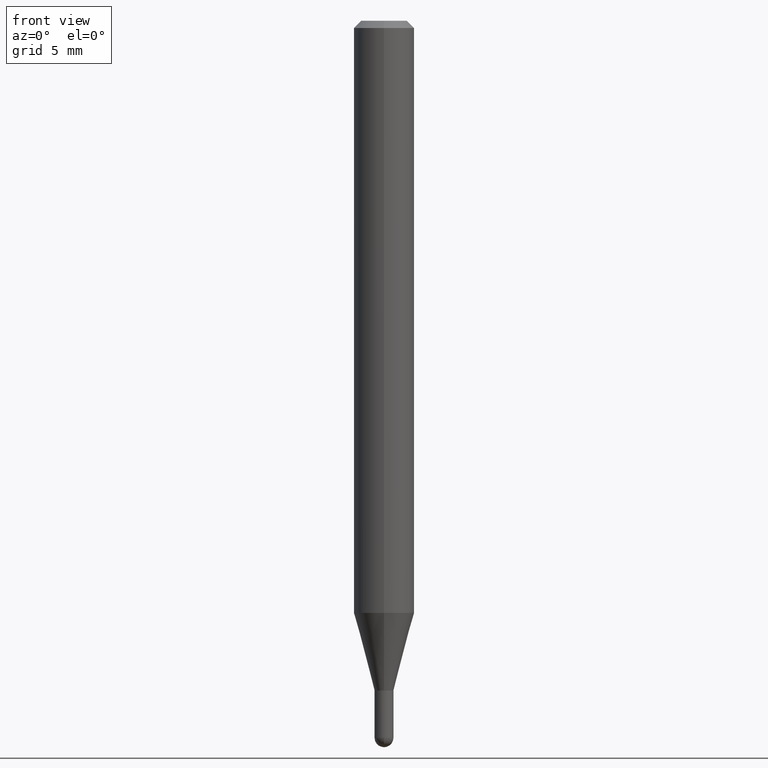
[diagram: clean part render]
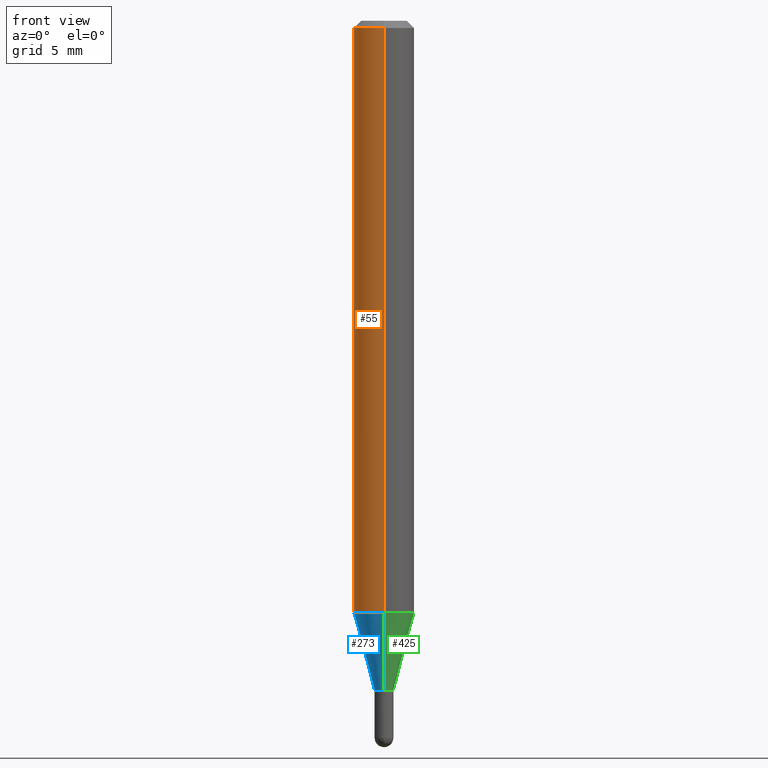
[diagram: same view with three faces highlighted in distinct colors, each labeled with its STEP entity id]
A machine part, front view with three faces highlighted in distinct colors.
Their STEP definitions:

[orange] entity #55 — the highlighted cylindrical surface (edge-blend (fillet) strip) has radius 1.5875 mm, axis along (-0, 0, 1).
#2 = ORIENTED_EDGE ( 'NONE', *, *, #444, .T. ) ;
#10 = VECTOR ( 'NONE', #50, 39.37007874015748143 ) ;
#11 = CIRCLE ( 'NONE', #88, 0.06250000000000000000 ) ;
#50 = DIRECTION ( 'NONE',  ( -2.445465756563151398E-29, 3.491485706075402250E-15, 1.000000000000000000 ) ) ;
#55 = ADVANCED_FACE ( 'NONE', ( #285 ), #247, .T. ) ;
#67 = CARTESIAN_POINT ( 'NONE',  ( 4.440892098500925929E-16, 0.06249999999999995143, -0.01500000000000028394 ) ) ;
#74 = LINE ( 'NONE', #506, #421 ) ;
#84 = EDGE_CURVE ( 'NONE', #282, #317, #249, .T. ) ;
#85 = DIRECTION ( 'NONE',  ( -6.982962677686265922E-15, -1.000000000000000000, 3.491485706075402250E-15 ) ) ;
#88 = AXIS2_PLACEMENT_3D ( 'NONE', #230, #189, #277 ) ;
#113 = CARTESIAN_POINT ( 'NONE',  ( -4.364351673553912750E-16, -0.06250000000000005551, -0.01499999999999984852 ) ) ;
#137 = DIRECTION ( 'NONE',  ( -2.445465756563151118E-29, 3.491485706075402250E-15, 1.000000000000000000 ) ) ;
#181 = CARTESIAN_POINT ( 'NONE',  ( -4.364351673553618406E-16, -0.06250000000000428824, -1.222521815274542067 ) ) ;
#186 = VERTEX_POINT ( 'NONE', #67 ) ;
#189 = DIRECTION ( 'NONE',  ( -2.445465756563151118E-29, 3.491485706075402250E-15, 1.000000000000000000 ) ) ;
#218 = AXIS2_PLACEMENT_3D ( 'NONE', #441, #484, #85 ) ;
#230 = CARTESIAN_POINT ( 'NONE',  ( 2.989635235905315771E-29, -4.268417443396418257E-15, -1.222521815274542289 ) ) ;
#247 = CYLINDRICAL_SURFACE ( 'NONE', #218, 0.06250000000000000000 ) ;
#249 = LINE ( 'NONE', #479, #10 ) ;
#254 = EDGE_CURVE ( 'NONE', #186, #317, #345, .T. ) ;
#263 = AXIS2_PLACEMENT_3D ( 'NONE', #415, #137, #500 ) ;
#277 = DIRECTION ( 'NONE',  ( -6.982962677686265922E-15, -1.000000000000000000, 4.370956789862821150E-15 ) ) ;
#282 = VERTEX_POINT ( 'NONE', #181 ) ;
#285 = FACE_OUTER_BOUND ( 'NONE', #384, .T. ) ;
#302 = VERTEX_POINT ( 'NONE', #465 ) ;
#307 = ORIENTED_EDGE ( 'NONE', *, *, #84, .T. ) ;
#314 = ORIENTED_EDGE ( 'NONE', *, *, #439, .F. ) ;
#317 = VERTEX_POINT ( 'NONE', #113 ) ;
#345 = CIRCLE ( 'NONE', #263, 0.06250000000000000000 ) ;
#360 = DIRECTION ( 'NONE',  ( -2.445465756563151398E-29, 3.491485706075402250E-15, 1.000000000000000000 ) ) ;
#384 = EDGE_LOOP ( 'NONE', ( #314, #2, #307, #432 ) ) ;
#415 = CARTESIAN_POINT ( 'NONE',  ( 3.668198634844742967E-31, -5.237228559113126399E-17, -0.01500000000000006710 ) ) ;
#421 = VECTOR ( 'NONE', #360, 39.37007874015748143 ) ;
#432 = ORIENTED_EDGE ( 'NONE', *, *, #254, .F. ) ;
#439 = EDGE_CURVE ( 'NONE', #302, #186, #74, .T. ) ;
#441 = CARTESIAN_POINT ( 'NONE',  ( 0.000000000000000000, 0.000000000000000000, 0.000000000000000000 ) ) ;
#444 = EDGE_CURVE ( 'NONE', #302, #282, #11, .T. ) ;
#465 = CARTESIAN_POINT ( 'NONE',  ( 4.440892098500921985E-16, 0.06249999999999571176, -1.222521815274542734 ) ) ;
#479 = CARTESIAN_POINT ( 'NONE',  ( -4.364351673553916201E-16, -0.06250000000000000000, 2.182178566297126406E-16 ) ) ;
#484 = DIRECTION ( 'NONE',  ( -2.445465756563151118E-29, 3.491485706075402250E-15, 1.000000000000000000 ) ) ;
#500 = DIRECTION ( 'NONE',  ( -6.982962677686265922E-15, -1.000000000000000000, 3.483106191921935554E-15 ) ) ;
#506 = CARTESIAN_POINT ( 'NONE',  ( 4.440892098500625669E-16, 0.06250000000000000000, -2.182178566297126406E-16 ) ) ;

[blue] entity #273 — the highlighted conical surface has half-angle 15 deg.
#11 = CIRCLE ( 'NONE', #88, 0.06250000000000000000 ) ;
#16 = EDGE_CURVE ( 'NONE', #193, #282, #90, .T. ) ;
#27 = CONICAL_SURFACE ( 'NONE', #237, 0.01949999999999964956, 0.2617993877991579010 ) ;
#45 = VECTOR ( 'NONE', #480, 39.37007874015748143 ) ;
#59 = ORIENTED_EDGE ( 'NONE', *, *, #444, .F. ) ;
#63 = DIRECTION ( 'NONE',  ( -2.445465756563151118E-29, 3.491485706075402250E-15, 1.000000000000000000 ) ) ;
#86 = VECTOR ( 'NONE', #203, 39.37007874015748854 ) ;
#88 = AXIS2_PLACEMENT_3D ( 'NONE', #230, #189, #277 ) ;
#90 = LINE ( 'NONE', #326, #86 ) ;
#92 = EDGE_CURVE ( 'NONE', #419, #302, #366, .T. ) ;
#96 = CARTESIAN_POINT ( 'NONE',  ( -1.361677722148459211E-16, -0.01950000000000447556, -1.383000000000000007 ) ) ;
#117 = ORIENTED_EDGE ( 'NONE', *, *, #16, .T. ) ;
#147 = DIRECTION ( 'NONE',  ( -2.445465756563151118E-29, 3.491485706075402250E-15, 1.000000000000000000 ) ) ;
#168 = AXIS2_PLACEMENT_3D ( 'NONE', #462, #147, #452 ) ;
#181 = CARTESIAN_POINT ( 'NONE',  ( -4.364351673553618406E-16, -0.06250000000000428824, -1.222521815274542067 ) ) ;
#189 = DIRECTION ( 'NONE',  ( -2.445465756563151118E-29, 3.491485706075402250E-15, 1.000000000000000000 ) ) ;
#193 = VERTEX_POINT ( 'NONE', #96 ) ;
#199 = EDGE_CURVE ( 'NONE', #419, #193, #403, .T. ) ;
#203 = DIRECTION ( 'NONE',  ( -1.807323732225381810E-15, -0.2588190451025255689, 0.9659258262890669799 ) ) ;
#230 = CARTESIAN_POINT ( 'NONE',  ( 2.989635235905315771E-29, -4.268417443396418257E-15, -1.222521815274542289 ) ) ;
#237 = AXIS2_PLACEMENT_3D ( 'NONE', #261, #63, #381 ) ;
#238 = EDGE_LOOP ( 'NONE', ( #350, #347, #117, #59 ) ) ;
#261 = CARTESIAN_POINT ( 'NONE',  ( 3.382079141326838321E-29, -4.828724731502281500E-15, -1.383000000000000007 ) ) ;
#273 = ADVANCED_FACE ( 'NONE', ( #455 ), #27, .T. ) ;
#277 = DIRECTION ( 'NONE',  ( -6.982962677686265922E-15, -1.000000000000000000, 4.370956789862821150E-15 ) ) ;
#282 = VERTEX_POINT ( 'NONE', #181 ) ;
#302 = VERTEX_POINT ( 'NONE', #465 ) ;
#326 = CARTESIAN_POINT ( 'NONE',  ( -1.361677722148459211E-16, -0.01950000000000447556, -1.383000000000000007 ) ) ;
#347 = ORIENTED_EDGE ( 'NONE', *, *, #199, .T. ) ;
#350 = ORIENTED_EDGE ( 'NONE', *, *, #92, .F. ) ;
#366 = LINE ( 'NONE', #408, #45 ) ;
#381 = DIRECTION ( 'NONE',  ( -6.982962677686265133E-15, -1.000000000000000000, 0.000000000000000000 ) ) ;
#403 = CIRCLE ( 'NONE', #168, 0.01949999999999964956 ) ;
#408 = CARTESIAN_POINT ( 'NONE',  ( 1.385558334732508193E-16, 0.01949999999999482009, -1.383000000000000007 ) ) ;
#419 = VERTEX_POINT ( 'NONE', #510 ) ;
#444 = EDGE_CURVE ( 'NONE', #302, #282, #11, .T. ) ;
#452 = DIRECTION ( 'NONE',  ( -6.982962677686265133E-15, -1.000000000000000000, 0.000000000000000000 ) ) ;
#455 = FACE_OUTER_BOUND ( 'NONE', #238, .T. ) ;
#462 = CARTESIAN_POINT ( 'NONE',  ( 3.382079141326838321E-29, -4.828724731502281500E-15, -1.383000000000000007 ) ) ;
#465 = CARTESIAN_POINT ( 'NONE',  ( 4.440892098500921985E-16, 0.06249999999999571176, -1.222521815274542734 ) ) ;
#480 = DIRECTION ( 'NONE',  ( 1.839019923739652775E-15, 0.2588190451025323413, 0.9659258262890650926 ) ) ;
#510 = CARTESIAN_POINT ( 'NONE',  ( 2.913225216616718047E-16, 0.01949999999999482009, -1.383000000000000007 ) ) ;

[green] entity #425 — the highlighted conical surface has half-angle 15 deg.
#16 = EDGE_CURVE ( 'NONE', #193, #282, #90, .T. ) ;
#45 = VECTOR ( 'NONE', #480, 39.37007874015748143 ) ;
#61 = DIRECTION ( 'NONE',  ( -6.982962677686265922E-15, -1.000000000000000000, 4.370956789862821150E-15 ) ) ;
#78 = FACE_OUTER_BOUND ( 'NONE', #458, .T. ) ;
#86 = VECTOR ( 'NONE', #203, 39.37007874015748854 ) ;
#90 = LINE ( 'NONE', #326, #86 ) ;
#92 = EDGE_CURVE ( 'NONE', #419, #302, #366, .T. ) ;
#96 = CARTESIAN_POINT ( 'NONE',  ( -1.361677722148459211E-16, -0.01950000000000447556, -1.383000000000000007 ) ) ;
#97 = ORIENTED_EDGE ( 'NONE', *, *, #16, .F. ) ;
#144 = DIRECTION ( 'NONE',  ( -6.982962677686265133E-15, -1.000000000000000000, 0.000000000000000000 ) ) ;
#151 = DIRECTION ( 'NONE',  ( -6.982962677686265133E-15, -1.000000000000000000, 0.000000000000000000 ) ) ;
#154 = ORIENTED_EDGE ( 'NONE', *, *, #229, .T. ) ;
#159 = DIRECTION ( 'NONE',  ( -2.445465756563151118E-29, 3.491485706075402250E-15, 1.000000000000000000 ) ) ;
#176 = EDGE_CURVE ( 'NONE', #282, #302, #436, .T. ) ;
#179 = CARTESIAN_POINT ( 'NONE',  ( 2.989635235905315771E-29, -4.268417443396418257E-15, -1.222521815274542289 ) ) ;
#181 = CARTESIAN_POINT ( 'NONE',  ( -4.364351673553618406E-16, -0.06250000000000428824, -1.222521815274542067 ) ) ;
#183 = ORIENTED_EDGE ( 'NONE', *, *, #92, .T. ) ;
#191 = CARTESIAN_POINT ( 'NONE',  ( 3.382079141326838321E-29, -4.828724731502281500E-15, -1.383000000000000007 ) ) ;
#193 = VERTEX_POINT ( 'NONE', #96 ) ;
#196 = ORIENTED_EDGE ( 'NONE', *, *, #176, .F. ) ;
#203 = DIRECTION ( 'NONE',  ( -1.807323732225381810E-15, -0.2588190451025255689, 0.9659258262890669799 ) ) ;
#206 = AXIS2_PLACEMENT_3D ( 'NONE', #488, #253, #144 ) ;
#210 = DIRECTION ( 'NONE',  ( -2.445465756563151118E-29, 3.491485706075402250E-15, 1.000000000000000000 ) ) ;
#229 = EDGE_CURVE ( 'NONE', #193, #419, #459, .T. ) ;
#253 = DIRECTION ( 'NONE',  ( -2.445465756563151118E-29, 3.491485706075402250E-15, 1.000000000000000000 ) ) ;
#282 = VERTEX_POINT ( 'NONE', #181 ) ;
#298 = AXIS2_PLACEMENT_3D ( 'NONE', #179, #210, #61 ) ;
#300 = AXIS2_PLACEMENT_3D ( 'NONE', #191, #159, #151 ) ;
#302 = VERTEX_POINT ( 'NONE', #465 ) ;
#316 = CONICAL_SURFACE ( 'NONE', #300, 0.01949999999999964956, 0.2617993877991579010 ) ;
#326 = CARTESIAN_POINT ( 'NONE',  ( -1.361677722148459211E-16, -0.01950000000000447556, -1.383000000000000007 ) ) ;
#366 = LINE ( 'NONE', #408, #45 ) ;
#408 = CARTESIAN_POINT ( 'NONE',  ( 1.385558334732508193E-16, 0.01949999999999482009, -1.383000000000000007 ) ) ;
#419 = VERTEX_POINT ( 'NONE', #510 ) ;
#425 = ADVANCED_FACE ( 'NONE', ( #78 ), #316, .T. ) ;
#436 = CIRCLE ( 'NONE', #298, 0.06250000000000000000 ) ;
#458 = EDGE_LOOP ( 'NONE', ( #154, #183, #196, #97 ) ) ;
#459 = CIRCLE ( 'NONE', #206, 0.01949999999999964956 ) ;
#465 = CARTESIAN_POINT ( 'NONE',  ( 4.440892098500921985E-16, 0.06249999999999571176, -1.222521815274542734 ) ) ;
#480 = DIRECTION ( 'NONE',  ( 1.839019923739652775E-15, 0.2588190451025323413, 0.9659258262890650926 ) ) ;
#488 = CARTESIAN_POINT ( 'NONE',  ( 3.382079141326838321E-29, -4.828724731502281500E-15, -1.383000000000000007 ) ) ;
#510 = CARTESIAN_POINT ( 'NONE',  ( 2.913225216616718047E-16, 0.01949999999999482009, -1.383000000000000007 ) ) ;